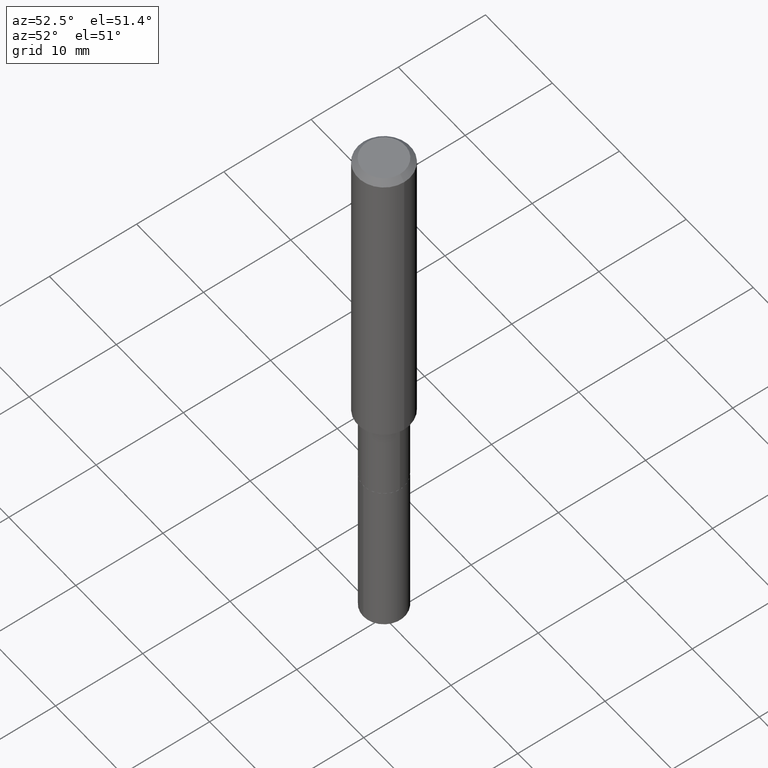
[diagram: clean part render]
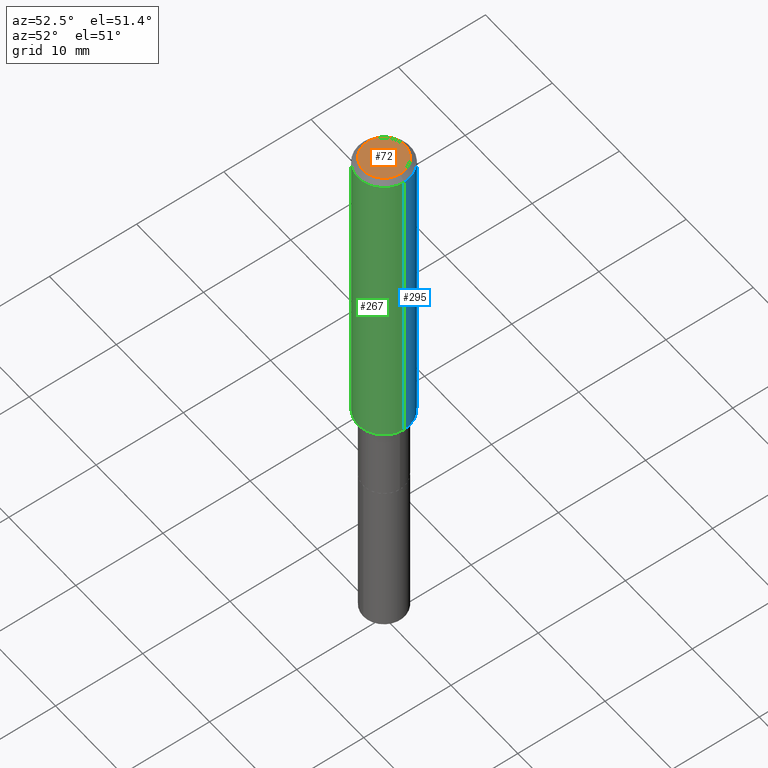
[diagram: same view with three faces highlighted in distinct colors, each labeled with its STEP entity id]
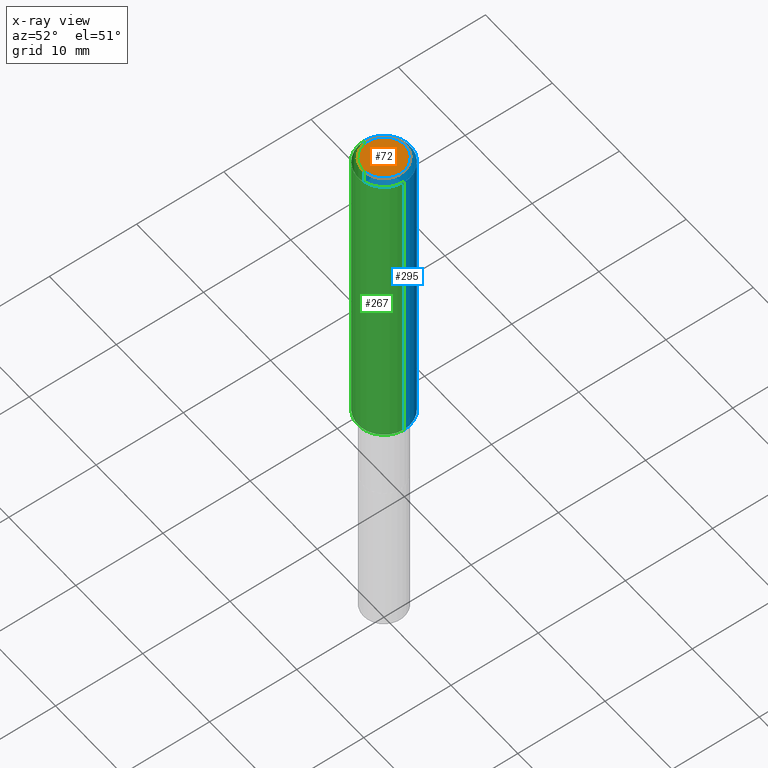
[diagram: x-ray of the same camera — body ghosted, the three highlighted faces saturated]
A machine part, auxiliary view with three faces highlighted in distinct colors.
The next image is the same camera in x-ray (body ghosted, the three faces saturated) — at least one of them is partly hidden behind the body in this view.
Their STEP definitions:

[orange] entity #72 — the highlighted planar face has unit normal (0, -0, -1).
#6 = EDGE_CURVE ( 'NONE', #241, #401, #177, .T. ) ;
#20 = CARTESIAN_POINT ( 'NONE',  ( 6.603013411620882309E-46, -9.427353171913646324E-32, -2.700101262760083747E-17 ) ) ;
#24 = EDGE_CURVE ( 'NONE', #401, #241, #74, .T. ) ;
#33 = AXIS2_PLACEMENT_3D ( 'NONE', #253, #489, #469 ) ;
#51 = CARTESIAN_POINT ( 'NONE',  ( -0.09447999999999998066, 7.009847083995354710E-16, -2.700101262760559836E-17 ) ) ;
#62 = DIRECTION ( 'NONE',  ( -2.445468806185136597E-29, 3.491481338843145583E-15, 1.000000000000000000 ) ) ;
#72 = ADVANCED_FACE ( 'NONE', ( #78 ), #379, .F. ) ;
#74 = CIRCLE ( 'NONE', #33, 0.09447999999999998066 ) ;
#78 = FACE_OUTER_BOUND ( 'NONE', #426, .T. ) ;
#80 = CARTESIAN_POINT ( 'NONE',  ( 0.09447999999999998066, -7.704367267948738690E-16, -2.700101262759583929E-17 ) ) ;
#120 = DIRECTION ( 'NONE',  ( -1.000000000000000000, 6.982962677686265922E-15, -4.876176775795935793E-29 ) ) ;
#137 = ORIENTED_EDGE ( 'NONE', *, *, #24, .T. ) ;
#177 = CIRCLE ( 'NONE', #438, 0.09447999999999998066 ) ;
#195 = DIRECTION ( 'NONE',  ( 2.438088387897960049E-29, -3.491481338843145188E-15, -1.000000000000000000 ) ) ;
#241 = VERTEX_POINT ( 'NONE', #80 ) ;
#251 = ORIENTED_EDGE ( 'NONE', *, *, #6, .T. ) ;
#253 = CARTESIAN_POINT ( 'NONE',  ( 6.603013411620882309E-46, -9.427353171913646324E-32, -2.700101262760083747E-17 ) ) ;
#379 = PLANE ( 'NONE',  #450 ) ;
#401 = VERTEX_POINT ( 'NONE', #51 ) ;
#417 = CARTESIAN_POINT ( 'NONE',  ( 3.301506705810441154E-46, -4.713676585956823162E-32, -1.350050631380041873E-17 ) ) ;
#426 = EDGE_LOOP ( 'NONE', ( #137, #251 ) ) ;
#438 = AXIS2_PLACEMENT_3D ( 'NONE', #20, #62, #476 ) ;
#450 = AXIS2_PLACEMENT_3D ( 'NONE', #417, #195, #120 ) ;
#469 = DIRECTION ( 'NONE',  ( 1.000000000000000000, -6.982962677686267499E-15, 4.875432709231658792E-29 ) ) ;
#476 = DIRECTION ( 'NONE',  ( 1.000000000000000000, -6.982962677686267499E-15, 4.875432709231658792E-29 ) ) ;
#489 = DIRECTION ( 'NONE',  ( -2.445468806185136597E-29, 3.491481338843145583E-15, 1.000000000000000000 ) ) ;

[blue] entity #295 — the highlighted cylindrical surface (edge-blend (fillet) strip) has radius 2.9997 mm, axis along (-0, 0, 1).
#1 = CARTESIAN_POINT ( 'NONE',  ( 5.776197320209327532E-31, -8.246878922347559293E-17, -0.02362000000000014088 ) ) ;
#16 = ORIENTED_EDGE ( 'NONE', *, *, #208, .T. ) ;
#39 = FACE_OUTER_BOUND ( 'NONE', #477, .T. ) ;
#44 = CARTESIAN_POINT ( 'NONE',  ( -0.1180999999999999966, -1.722147367022568630E-15, -0.02362000000000014088 ) ) ;
#45 = VERTEX_POINT ( 'NONE', #59 ) ;
#59 = CARTESIAN_POINT ( 'NONE',  ( -0.1181000000000001632, -4.200976915754341577E-15, -1.443549999999999445 ) ) ;
#61 = VERTEX_POINT ( 'NONE', #44 ) ;
#77 = CARTESIAN_POINT ( 'NONE',  ( 0.1180999999999999966, -9.071566814582237199E-16, -0.02362000000000014088 ) ) ;
#84 = CARTESIAN_POINT ( 'NONE',  ( -0.1181000000000000799, 8.391509709326788873E-16, -5.809262341591047988E-30 ) ) ;
#102 = ORIENTED_EDGE ( 'NONE', *, *, #270, .F. ) ;
#111 = CARTESIAN_POINT ( 'NONE',  ( 0.1181000000000000799, -8.246878922347486570E-16, 5.758764772215004644E-30 ) ) ;
#115 = DIRECTION ( 'NONE',  ( -2.445468806185136877E-29, 3.491481338843145188E-15, 1.000000000000000000 ) ) ;
#153 = LINE ( 'NONE', #111, #418 ) ;
#157 = CARTESIAN_POINT ( 'NONE',  ( 0.000000000000000000, 0.000000000000000000, 0.000000000000000000 ) ) ;
#163 = CIRCLE ( 'NONE', #184, 0.1180999999999999966 ) ;
#172 = ORIENTED_EDGE ( 'NONE', *, *, #455, .T. ) ;
#184 = AXIS2_PLACEMENT_3D ( 'NONE', #1, #336, #261 ) ;
#191 = CYLINDRICAL_SURFACE ( 'NONE', #351, 0.1181000000000000799 ) ;
#199 = EDGE_CURVE ( 'NONE', #287, #61, #163, .T. ) ;
#208 = EDGE_CURVE ( 'NONE', #45, #61, #449, .T. ) ;
#249 = DIRECTION ( 'NONE',  ( -2.445468806185136597E-29, 3.491481338843145583E-15, 1.000000000000000000 ) ) ;
#261 = DIRECTION ( 'NONE',  ( 1.000000000000000000, -6.982962677686266711E-15, 0.000000000000000000 ) ) ;
#270 = EDGE_CURVE ( 'NONE', #284, #287, #153, .T. ) ;
#284 = VERTEX_POINT ( 'NONE', #308 ) ;
#286 = CIRCLE ( 'NONE', #404, 0.1181000000000001632 ) ;
#287 = VERTEX_POINT ( 'NONE', #77 ) ;
#295 = ADVANCED_FACE ( 'NONE', ( #39 ), #191, .T. ) ;
#298 = DIRECTION ( 'NONE',  ( 1.000000000000000000, -6.982962677686263555E-15, 0.000000000000000000 ) ) ;
#308 = CARTESIAN_POINT ( 'NONE',  ( 0.1181000000000001632, -5.864815778921770403E-15, -1.443549999999999445 ) ) ;
#312 = DIRECTION ( 'NONE',  ( -2.445468806185136597E-29, 3.491481338843145583E-15, 1.000000000000000000 ) ) ;
#336 = DIRECTION ( 'NONE',  ( -2.445468806185136597E-29, 3.491481338843145583E-15, 1.000000000000000000 ) ) ;
#342 = VECTOR ( 'NONE', #370, 39.37007874015748143 ) ;
#351 = AXIS2_PLACEMENT_3D ( 'NONE', #157, #312, #458 ) ;
#370 = DIRECTION ( 'NONE',  ( -2.445468806185136877E-29, 3.491481338843145188E-15, 1.000000000000000000 ) ) ;
#404 = AXIS2_PLACEMENT_3D ( 'NONE', #463, #249, #298 ) ;
#418 = VECTOR ( 'NONE', #115, 39.37007874015748143 ) ;
#437 = ORIENTED_EDGE ( 'NONE', *, *, #199, .F. ) ;
#449 = LINE ( 'NONE', #84, #342 ) ;
#455 = EDGE_CURVE ( 'NONE', #284, #45, #286, .T. ) ;
#458 = DIRECTION ( 'NONE',  ( 1.000000000000000000, -6.982962677686266711E-15, 4.876176775795936353E-29 ) ) ;
#463 = CARTESIAN_POINT ( 'NONE',  ( 3.530156495168552384E-29, -5.040127886687020563E-15, -1.443549999999999445 ) ) ;
#477 = EDGE_LOOP ( 'NONE', ( #172, #16, #437, #102 ) ) ;

[green] entity #267 — the highlighted cylindrical surface (edge-blend (fillet) strip) has radius 2.9997 mm, axis along (-0, 0, 1).
#4 = FACE_OUTER_BOUND ( 'NONE', #97, .T. ) ;
#14 = CARTESIAN_POINT ( 'NONE',  ( 3.530156495168552384E-29, -5.040127886687020563E-15, -1.443549999999999445 ) ) ;
#44 = CARTESIAN_POINT ( 'NONE',  ( -0.1180999999999999966, -1.722147367022568630E-15, -0.02362000000000014088 ) ) ;
#45 = VERTEX_POINT ( 'NONE', #59 ) ;
#59 = CARTESIAN_POINT ( 'NONE',  ( -0.1181000000000001632, -4.200976915754341577E-15, -1.443549999999999445 ) ) ;
#61 = VERTEX_POINT ( 'NONE', #44 ) ;
#63 = CIRCLE ( 'NONE', #75, 0.1181000000000001632 ) ;
#75 = AXIS2_PLACEMENT_3D ( 'NONE', #14, #428, #465 ) ;
#77 = CARTESIAN_POINT ( 'NONE',  ( 0.1180999999999999966, -9.071566814582237199E-16, -0.02362000000000014088 ) ) ;
#84 = CARTESIAN_POINT ( 'NONE',  ( -0.1181000000000000799, 8.391509709326788873E-16, -5.809262341591047988E-30 ) ) ;
#89 = ORIENTED_EDGE ( 'NONE', *, *, #175, .F. ) ;
#97 = EDGE_LOOP ( 'NONE', ( #170, #390, #207, #89 ) ) ;
#111 = CARTESIAN_POINT ( 'NONE',  ( 0.1181000000000000799, -8.246878922347486570E-16, 5.758764772215004644E-30 ) ) ;
#115 = DIRECTION ( 'NONE',  ( -2.445468806185136877E-29, 3.491481338843145188E-15, 1.000000000000000000 ) ) ;
#153 = LINE ( 'NONE', #111, #418 ) ;
#170 = ORIENTED_EDGE ( 'NONE', *, *, #208, .F. ) ;
#175 = EDGE_CURVE ( 'NONE', #61, #287, #189, .T. ) ;
#178 = AXIS2_PLACEMENT_3D ( 'NONE', #301, #333, #411 ) ;
#189 = CIRCLE ( 'NONE', #324, 0.1180999999999999966 ) ;
#206 = DIRECTION ( 'NONE',  ( 1.000000000000000000, -6.982962677686266711E-15, 0.000000000000000000 ) ) ;
#207 = ORIENTED_EDGE ( 'NONE', *, *, #270, .T. ) ;
#208 = EDGE_CURVE ( 'NONE', #45, #61, #449, .T. ) ;
#243 = CARTESIAN_POINT ( 'NONE',  ( 5.776197320209327532E-31, -8.246878922347559293E-17, -0.02362000000000014088 ) ) ;
#267 = ADVANCED_FACE ( 'NONE', ( #4 ), #444, .T. ) ;
#270 = EDGE_CURVE ( 'NONE', #284, #287, #153, .T. ) ;
#284 = VERTEX_POINT ( 'NONE', #308 ) ;
#287 = VERTEX_POINT ( 'NONE', #77 ) ;
#301 = CARTESIAN_POINT ( 'NONE',  ( 0.000000000000000000, 0.000000000000000000, 0.000000000000000000 ) ) ;
#308 = CARTESIAN_POINT ( 'NONE',  ( 0.1181000000000001632, -5.864815778921770403E-15, -1.443549999999999445 ) ) ;
#324 = AXIS2_PLACEMENT_3D ( 'NONE', #243, #396, #206 ) ;
#333 = DIRECTION ( 'NONE',  ( -2.445468806185136597E-29, 3.491481338843145583E-15, 1.000000000000000000 ) ) ;
#342 = VECTOR ( 'NONE', #370, 39.37007874015748143 ) ;
#360 = EDGE_CURVE ( 'NONE', #45, #284, #63, .T. ) ;
#370 = DIRECTION ( 'NONE',  ( -2.445468806185136877E-29, 3.491481338843145188E-15, 1.000000000000000000 ) ) ;
#390 = ORIENTED_EDGE ( 'NONE', *, *, #360, .T. ) ;
#396 = DIRECTION ( 'NONE',  ( -2.445468806185136597E-29, 3.491481338843145583E-15, 1.000000000000000000 ) ) ;
#411 = DIRECTION ( 'NONE',  ( 1.000000000000000000, -6.982962677686266711E-15, 4.876176775795936353E-29 ) ) ;
#418 = VECTOR ( 'NONE', #115, 39.37007874015748143 ) ;
#428 = DIRECTION ( 'NONE',  ( -2.445468806185136597E-29, 3.491481338843145583E-15, 1.000000000000000000 ) ) ;
#444 = CYLINDRICAL_SURFACE ( 'NONE', #178, 0.1181000000000000799 ) ;
#449 = LINE ( 'NONE', #84, #342 ) ;
#465 = DIRECTION ( 'NONE',  ( 1.000000000000000000, -6.982962677686263555E-15, 0.000000000000000000 ) ) ;